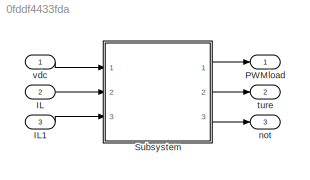
MODEL slx_0fddf4433fda
KIND model
CONFIG AbsTol = auto
CONFIG EnableMultiTasking = off
CONFIG FixedStep = auto
CONFIG MaxStep = auto
CONFIG MinStep = auto
CONFIG RelTol = 1e-3
CONFIG SampleTimeConstraint = Unconstrained
CONFIG SolverName = VariableStepAuto
CONFIG StartTime = 0.0
CONFIG StopTime = 10.0
BLOCK [Inport] IL
  Port = 2
BLOCK [Inport] IL1
  Port = 3
BLOCK [Outport] PWMload
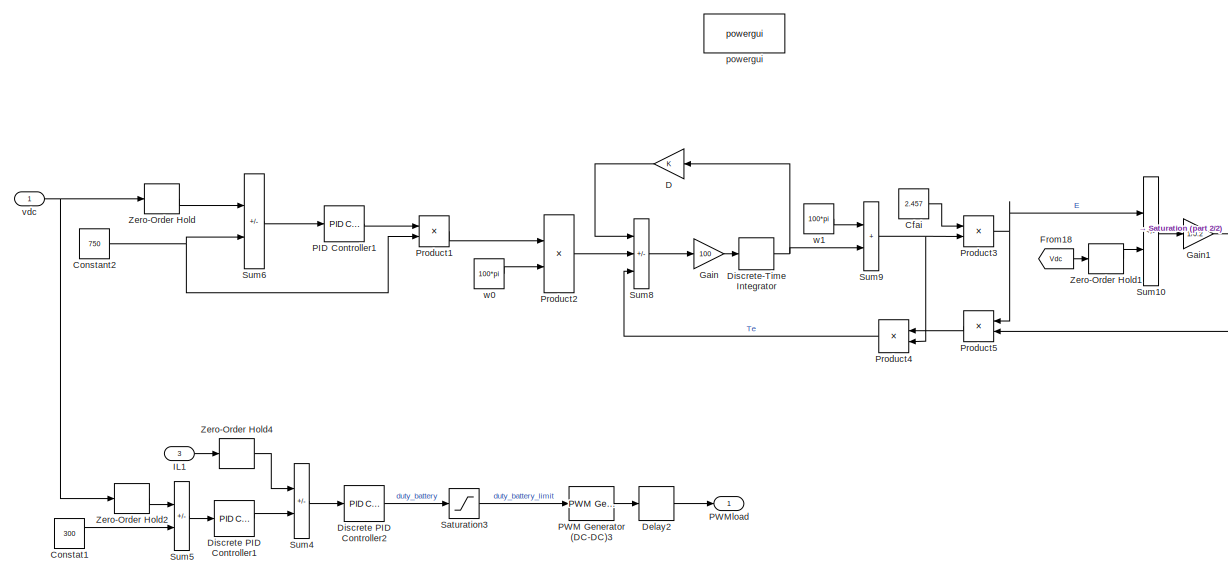
[diagram: Subsystem - part 1/2, left side, full height]
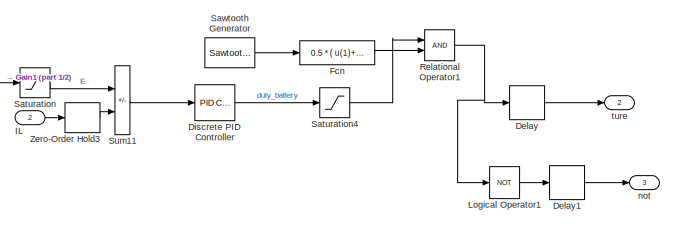
[diagram: Subsystem - part 2/2, middle right region]
BLOCK [SubSystem] Subsystem
  Ports = [3, 3]
  RequestExecContextInheritance = off
BLOCK [Constant] Subsystem/Cfai
  Value = 2.457
BLOCK [Constant] Subsystem/Constant2
  Value = 750
BLOCK [Constant] Subsystem/Constat1
  Value = 300
  VectorParams1D = off
BLOCK [Gain] Subsystem/D
  NameLocation = top
BLOCK [Delay] Subsystem/Delay
  DelayLength = 1
  InitialCondition = 0
  InputPortMap = u0
  Ports = [1, 1]
  SampleTime = 50e-6
BLOCK [Delay] Subsystem/Delay1
  DelayLength = 1
  InitialCondition = 0
  InputPortMap = u0
  Ports = [1, 1]
  SampleTime = 50e-6
BLOCK [Delay] Subsystem/Delay2
  DelayLength = 1
  InitialCondition = 0
  InputPortMap = u0
  Ports = [1, 1]
  SampleTime = 50e-6
BLOCK [Reference] Subsystem/Discrete PID Controller  REF=pid_lib/PID Controller
  Ports = [1, 1]
  SourceBlock = pid_lib/PID Controller
  SourceProductBaseCode = SL
  SourceType = PID 1dof
BLOCK [Reference] Subsystem/Discrete PID Controller1  REF=pid_lib/PID Controller
  Ports = [1, 1]
  SourceBlock = pid_lib/PID Controller
  SourceProductBaseCode = SL
  SourceType = PID 1dof
BLOCK [Reference] Subsystem/Discrete PID Controller2  REF=pid_lib/PID Controller
  Ports = [1, 1]
  SourceBlock = pid_lib/PID Controller
  SourceProductBaseCode = SL
  SourceType = PID 1dof
BLOCK [DiscreteIntegrator] Subsystem/Discrete-Time Integrator
  ICPrevOutput = DiscIntNeverNeededParam
  ICPrevScaledInput = DiscIntNeverNeededParam
  InitialConditionSetting = Auto
  Ports = [1, 1]
  SampleTime = 50e-6
BLOCK [Fcn] Subsystem/Fcn
  Expr = 0.5 * ( u(1)+1 )
BLOCK [From] Subsystem/From18
  GotoTag = Vdc
BLOCK [Gain] Subsystem/Gain
  Gain = 100
BLOCK [Gain] Subsystem/Gain1
  Gain = 1/0.2
BLOCK [Inport] Subsystem/IL
  Port = 2
BLOCK [Inport] Subsystem/IL1
  Port = 3
BLOCK [Logic] Subsystem/Logical Operator1
  AllPortsSameDT = off
  Operator = NOT
  OutDataTypeStr = boolean
  Ports = [1, 1]
BLOCK [Reference] Subsystem/PID Controller1  REF=pid_lib/PID Controller
  Ports = [1, 1]
  SourceBlock = pid_lib/PID Controller
  SourceProductBaseCode = SL
  SourceType = PID 1dof
BLOCK [Reference] Subsystem/PWM Generator (DC-DC)3  REF=powerlib_meascontrol/Pulse & Signal
Generators/PWM Generator
(DC-DC)
  Ports = [1, 1]
  SourceBlock = powerlib_meascontrol/Pulse & Signal\nGenerators/PWM Generator\n(DC-DC)
  SourceProductBaseCode = PS
  SourceType = PWM Generator (DC-DC)
BLOCK [Outport] Subsystem/PWMload
BLOCK [Product] Subsystem/Product1
  Ports = [2, 1]
BLOCK [Product] Subsystem/Product2
  Inputs = */
  Ports = [2, 1]
BLOCK [Product] Subsystem/Product3
  Ports = [2, 1]
BLOCK [Product] Subsystem/Product4
  Inputs = */
  NameLocation = top
  Ports = [2, 1]
BLOCK [Product] Subsystem/Product5
  NameLocation = top
  Ports = [2, 1]
BLOCK [RelationalOperator] Subsystem/Relational Operator1
  InputSameDT = off
  OutDataTypeStr = boolean
  Ports = [2, 1]
BLOCK [Saturate] Subsystem/Saturation
  LowerLimit = -1e5
  UpperLimit = 1e5
BLOCK [Saturate] Subsystem/Saturation3
  LowerLimit = 0
  UpperLimit = 1
BLOCK [Saturate] Subsystem/Saturation4
  LowerLimit = 0
  UpperLimit = 1
BLOCK [Reference] Subsystem/Sawtooth Generator  REF=powerlib_meascontrol/Pulse & Signal
Generators/Sawtooth
Generator
  Ports = [0, 1]
  SourceBlock = powerlib_meascontrol/Pulse & Signal\nGenerators/Sawtooth\nGenerator
  SourceProductBaseCode = PS
  SourceType = Sawtooth Generator
BLOCK [Sum] Subsystem/Sum10
  IconShape = rectangular
  Inputs = +-
  Ports = [2, 1]
BLOCK [Sum] Subsystem/Sum11
  IconShape = rectangular
  Inputs = +-
  Ports = [2, 1]
BLOCK [Sum] Subsystem/Sum4
  IconShape = rectangular
  Inputs = -+
  Ports = [2, 1]
BLOCK [Sum] Subsystem/Sum5
  IconShape = rectangular
  Inputs = -+
  Ports = [2, 1]
BLOCK [Sum] Subsystem/Sum6
  IconShape = rectangular
  Inputs = -+
  Ports = [2, 1]
BLOCK [Sum] Subsystem/Sum8
  IconShape = rectangular
  Inputs = -+-
  Ports = [3, 1]
BLOCK [Sum] Subsystem/Sum9
  IconShape = rectangular
  Ports = [2, 1]
BLOCK [ZeroOrderHold] Subsystem/Zero-Order Hold
  SampleTime = 50e-6
BLOCK [ZeroOrderHold] Subsystem/Zero-Order Hold1
  SampleTime = 50e-6
BLOCK [ZeroOrderHold] Subsystem/Zero-Order Hold2
  SampleTime = 50e-6
BLOCK [ZeroOrderHold] Subsystem/Zero-Order Hold3
  SampleTime = 50e-6
BLOCK [ZeroOrderHold] Subsystem/Zero-Order Hold4
  SampleTime = 50e-6
BLOCK [Outport] Subsystem/not
  Port = 3
BLOCK [Reference] Subsystem/powergui  REF=powerlib/powergui
  Ports = []
  Priority = 1
  SourceBlock = powerlib/powergui
  SourceProductBaseCode = PS
  SourceType = PSB option menu block
BLOCK [Outport] Subsystem/ture
  Port = 2
BLOCK [Inport] Subsystem/vdc
BLOCK [Constant] Subsystem/w0
  Value = 100*pi
BLOCK [Constant] Subsystem/w1
  Value = 100*pi
BLOCK [Outport] not
  Port = 3
BLOCK [Outport] ture
  Port = 2
BLOCK [Inport] vdc
LINE IL1:1 -> Subsystem:3
LINE IL:1 -> Subsystem:2
LINE Subsystem/Cfai:1 -> Subsystem/Product3:1
NET Subsystem/Constant2:1 -> Subsystem/Product1:2, Subsystem/Sum6:2
LINE Subsystem/Constat1:1 -> Subsystem/Sum5:2
LINE Subsystem/D:1 -> Subsystem/Sum8:1
LINE Subsystem/Delay1:1 -> Subsystem/not:1
LINE Subsystem/Delay2:1 -> Subsystem/PWMload:1
LINE Subsystem/Delay:1 -> Subsystem/ture:1
LINE Subsystem/Discrete PID Controller1:1 -> Subsystem/Sum4:2
LINE Subsystem/Discrete PID Controller2:1 -> Subsystem/Saturation3:1
LINE Subsystem/Discrete PID Controller:1 -> Subsystem/Saturation4:1
NET Subsystem/Discrete-Time Integrator:1 -> Subsystem/D:1, Subsystem/Sum9:2
LINE Subsystem/Fcn:1 -> Subsystem/Relational Operator1:2
LINE Subsystem/From18:1 -> Subsystem/Zero-Order Hold1:1
NET Subsystem/Gain1:1 -> Subsystem/Product5:2, Subsystem/Saturation:1
LINE Subsystem/Gain:1 -> Subsystem/Discrete-Time Integrator:1
LINE Subsystem/IL1:1 -> Subsystem/Zero-Order Hold4:1
LINE Subsystem/IL:1 -> Subsystem/Zero-Order Hold3:1
LINE Subsystem/Logical Operator1:1 -> Subsystem/Delay1:1
LINE Subsystem/PID Controller1:1 -> Subsystem/Product1:1
LINE Subsystem/PWM Generator (DC-DC)3:1 -> Subsystem/Delay2:1
LINE Subsystem/Product1:1 -> Subsystem/Product2:1
LINE Subsystem/Product2:1 -> Subsystem/Sum8:2
NET Subsystem/Product3:1 -> Subsystem/Product5:1, Subsystem/Sum10:1
LINE Subsystem/Product4:1 -> Subsystem/Sum8:3
LINE Subsystem/Product5:1 -> Subsystem/Product4:1
NET Subsystem/Relational Operator1:1 -> Subsystem/Delay:1, Subsystem/Logical Operator1:1
LINE Subsystem/Saturation3:1 -> Subsystem/PWM Generator (DC-DC)3:1
LINE Subsystem/Saturation4:1 -> Subsystem/Relational Operator1:1
LINE Subsystem/Saturation:1 -> Subsystem/Sum11:1
LINE Subsystem/Sawtooth Generator:1 -> Subsystem/Fcn:1
LINE Subsystem/Sum10:1 -> Subsystem/Gain1:1
LINE Subsystem/Sum11:1 -> Subsystem/Discrete PID Controller:1
LINE Subsystem/Sum4:1 -> Subsystem/Discrete PID Controller2:1
LINE Subsystem/Sum5:1 -> Subsystem/Discrete PID Controller1:1
LINE Subsystem/Sum6:1 -> Subsystem/PID Controller1:1
LINE Subsystem/Sum8:1 -> Subsystem/Gain:1
NET Subsystem/Sum9:1 -> Subsystem/Product3:2, Subsystem/Product4:2
LINE Subsystem/Zero-Order Hold1:1 -> Subsystem/Sum10:2
LINE Subsystem/Zero-Order Hold2:1 -> Subsystem/Sum5:1
LINE Subsystem/Zero-Order Hold3:1 -> Subsystem/Sum11:2
LINE Subsystem/Zero-Order Hold4:1 -> Subsystem/Sum4:1
LINE Subsystem/Zero-Order Hold:1 -> Subsystem/Sum6:1
NET Subsystem/vdc:1 -> Subsystem/Zero-Order Hold2:1, Subsystem/Zero-Order Hold:1
LINE Subsystem/w0:1 -> Subsystem/Product2:2
LINE Subsystem/w1:1 -> Subsystem/Sum9:1
LINE Subsystem:1 -> PWMload:1
LINE Subsystem:2 -> ture:1
LINE Subsystem:3 -> not:1
LINE vdc:1 -> Subsystem:1
note: NET lines group one-source signal fan-out (src -> all destinations, sorted); 1:1 wires keep LINE
